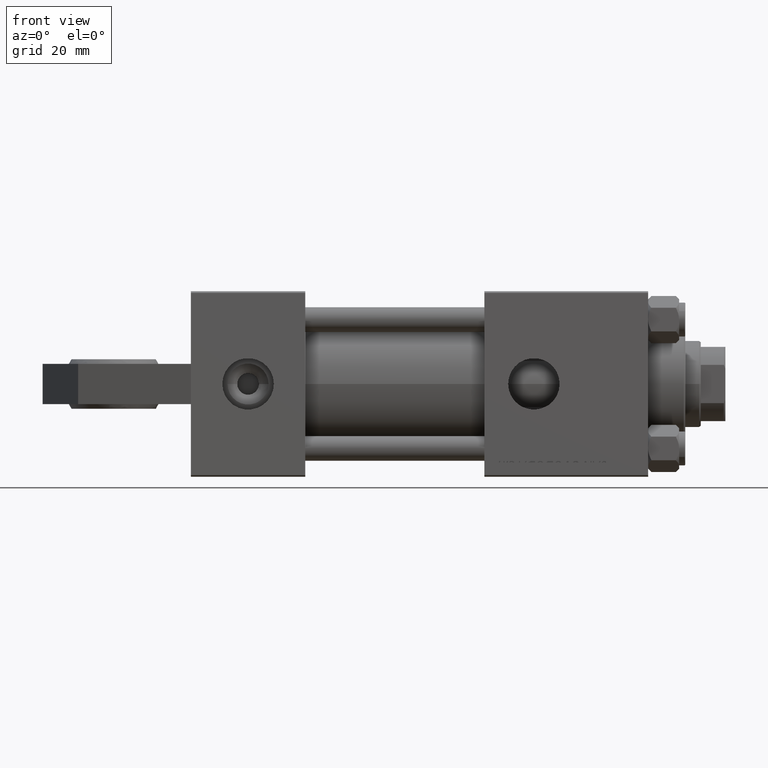
[diagram: clean part render]
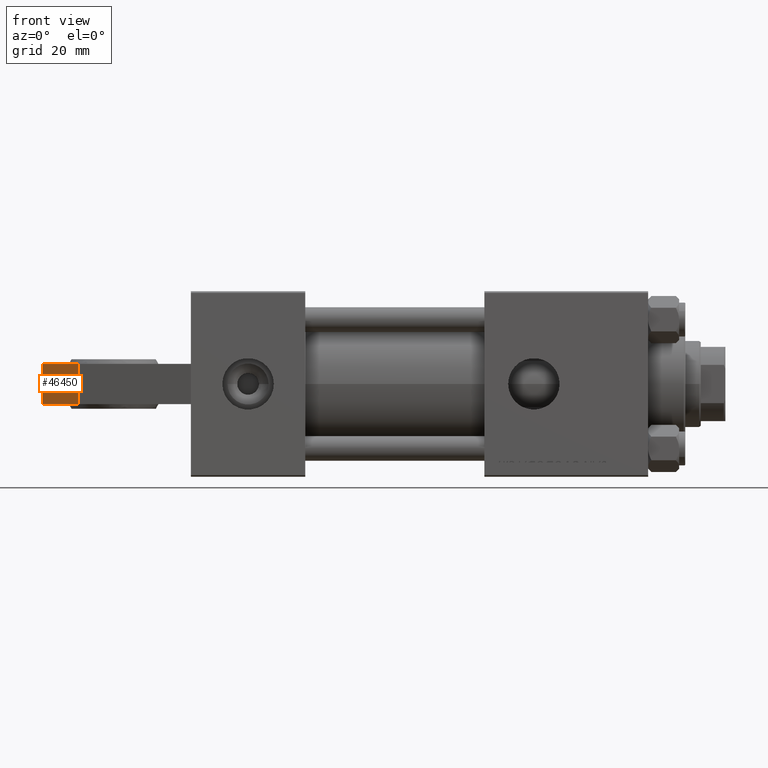
[diagram: same view with one face highlighted and labeled with its STEP entity id]
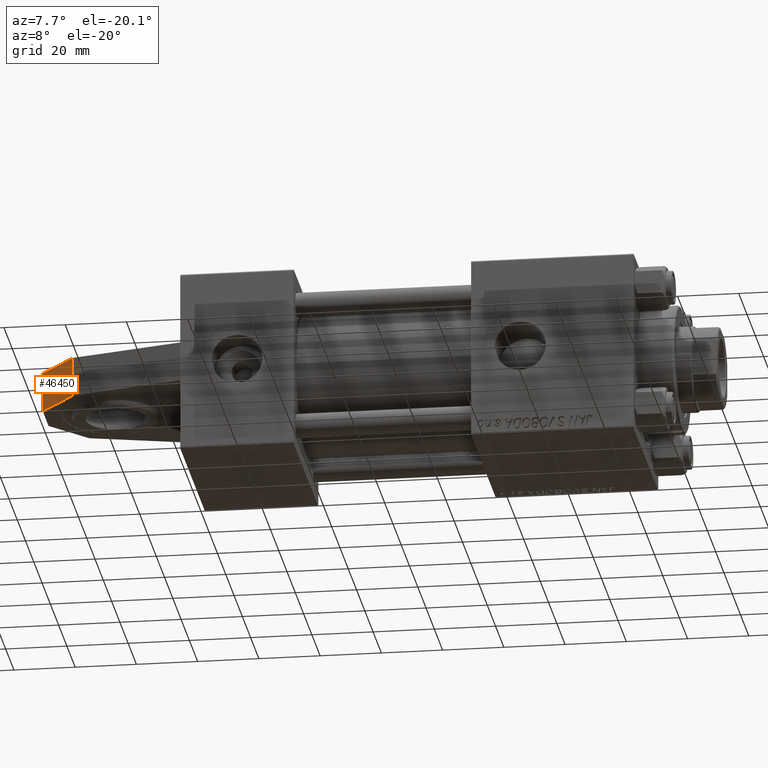
[diagram: same view with one face highlighted and labeled with its STEP entity id]
A machine part, front view. The second image highlights one B-rep face of the part: STEP entity #46450.
A second angle (auxiliary view) of the same face is appended — the face is thin or edge-on in the first view.
In plain terms, the highlighted planar face has unit normal (-0.7545, -0.6563, 0).
Its self-contained STEP definition (entity closure, byte-faithful):
#1155 = ORIENTED_EDGE ( 'NONE', *, *, #37857, .T. ) ;
#3116 = CARTESIAN_POINT ( 'NONE',  ( -36.50000000000000711, -6.500000000000000000, 20.21985447626385124 ) ) ;
#5051 = EDGE_CURVE ( 'NONE', #35875, #39811, #18131, .T. ) ;
#5412 = CARTESIAN_POINT ( 'NONE',  ( -48.00000000000000000, 6.500000000000000000, 6.999999999999995559 ) ) ;
#5811 = ORIENTED_EDGE ( 'NONE', *, *, #5051, .T. ) ;
#6677 = DIRECTION ( 'NONE',  ( 0.000000000000000000, 1.000000000000000000, 0.000000000000000000 ) ) ;
#7390 = DIRECTION ( 'NONE',  ( 0.000000000000000000, 1.000000000000000000, 0.000000000000000000 ) ) ;
#7855 = FACE_OUTER_BOUND ( 'NONE', #47036, .T. ) ;
#8202 = VECTOR ( 'NONE', #35430, 1000.000000000000114 ) ;
#8959 = LINE ( 'NONE', #5412, #8202 ) ;
#14730 = CARTESIAN_POINT ( 'NONE',  ( -48.00000000000000000, -6.500000000000000000, 6.999999999999995559 ) ) ;
#15402 = CARTESIAN_POINT ( 'NONE',  ( -48.00000000000000000, -6.500000000000000000, 6.999999999999995559 ) ) ;
#15932 = EDGE_CURVE ( 'NONE', #16895, #28028, #19332, .T. ) ;
#16895 = VERTEX_POINT ( 'NONE', #40229 ) ;
#18131 = LINE ( 'NONE', #3116, #28494 ) ;
#19332 = LINE ( 'NONE', #34839, #29526 ) ;
#22365 = PLANE ( 'NONE',  #41869 ) ;
#22615 = DIRECTION ( 'NONE',  ( -0.7544790652726499625, 0.000000000000000000, 0.6563241120553993113 ) ) ;
#23703 = VECTOR ( 'NONE', #34980, 1000.000000000000114 ) ;
#24377 = ORIENTED_EDGE ( 'NONE', *, *, #33007, .F. ) ;
#28028 = VERTEX_POINT ( 'NONE', #34535 ) ;
#28332 = CARTESIAN_POINT ( 'NONE',  ( -36.50000000000000711, 6.500000000000000000, 20.21985447626385124 ) ) ;
#28494 = VECTOR ( 'NONE', #6677, 1000.000000000000000 ) ;
#29526 = VECTOR ( 'NONE', #7390, 1000.000000000000000 ) ;
#30267 = DIRECTION ( 'NONE',  ( 0.6563241120553993113, 0.000000000000000000, 0.7544790652726499625 ) ) ;
#33007 = EDGE_CURVE ( 'NONE', #28028, #39811, #8959, .T. ) ;
#34535 = CARTESIAN_POINT ( 'NONE',  ( -48.00000000000000000, 6.500000000000000000, 6.999999999999995559 ) ) ;
#34839 = CARTESIAN_POINT ( 'NONE',  ( -48.00000000000000000, -6.500000000000000000, 6.999999999999995559 ) ) ;
#34980 = DIRECTION ( 'NONE',  ( 0.6563241120553993113, 0.000000000000000000, 0.7544790652726499625 ) ) ;
#35430 = DIRECTION ( 'NONE',  ( 0.6563241120553993113, 0.000000000000000000, 0.7544790652726499625 ) ) ;
#35875 = VERTEX_POINT ( 'NONE', #40493 ) ;
#37857 = EDGE_CURVE ( 'NONE', #16895, #35875, #38804, .T. ) ;
#38804 = LINE ( 'NONE', #15402, #23703 ) ;
#39811 = VERTEX_POINT ( 'NONE', #28332 ) ;
#40229 = CARTESIAN_POINT ( 'NONE',  ( -48.00000000000000000, -6.500000000000000000, 6.999999999999995559 ) ) ;
#40493 = CARTESIAN_POINT ( 'NONE',  ( -36.50000000000000711, -6.500000000000000000, 20.21985447626385124 ) ) ;
#41869 = AXIS2_PLACEMENT_3D ( 'NONE', #14730, #22615, #30267 ) ;
#46450 = ADVANCED_FACE ( 'NONE', ( #7855 ), #22365, .T. ) ;
#47036 = EDGE_LOOP ( 'NONE', ( #24377, #47533, #1155, #5811 ) ) ;
#47533 = ORIENTED_EDGE ( 'NONE', *, *, #15932, .F. ) ;